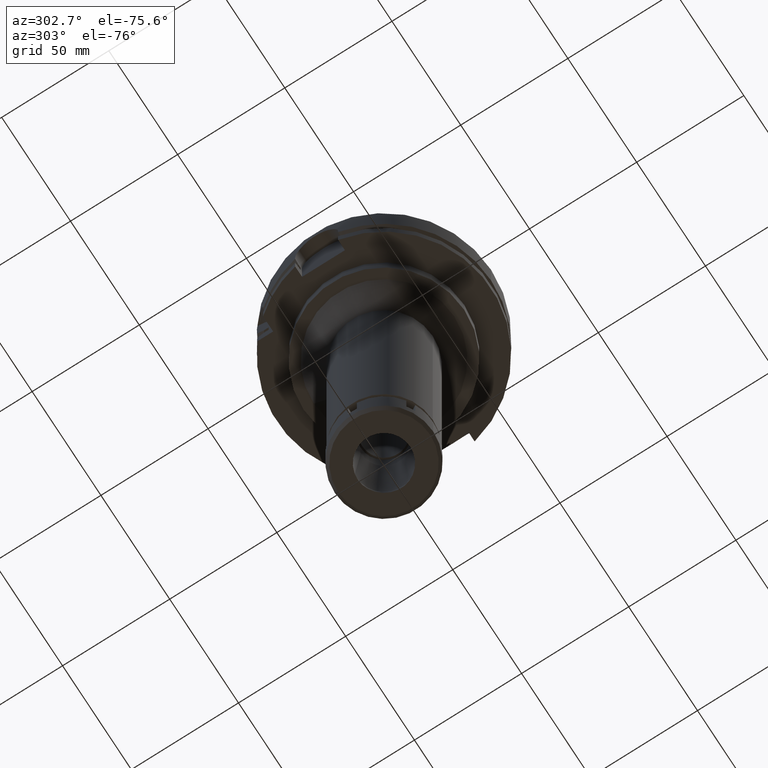
[diagram: clean part render]
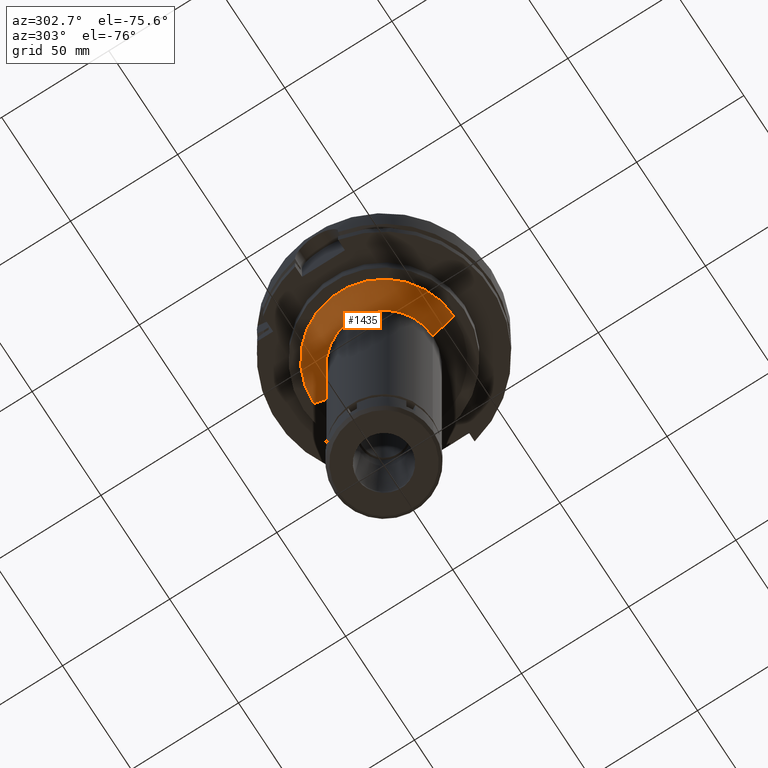
[diagram: same view with one face highlighted and labeled with its STEP entity id]
A machine part, auxiliary view. The second image highlights one B-rep face of the part: STEP entity #1435.
In plain terms, the highlighted conical surface has half-angle 45 deg.
Its self-contained STEP definition (entity closure, byte-faithful):
#16 = CARTESIAN_POINT ( 'NONE',  ( 0.0000000000000000000, 22.75000000000000000, -47.00000000000000000 ) ) ;
#66 = DIRECTION ( 'NONE',  ( 0.0000000000000000000, 1.000000000000000000, 0.0000000000000000000 ) ) ;
#85 = EDGE_CURVE ( 'NONE', #902, #2111, #6037, .T. ) ;
#304 = FACE_OUTER_BOUND ( 'NONE', #4911, .T. ) ;
#576 = VECTOR ( 'NONE', #1746, 1000.000000000000114 ) ;
#588 = VERTEX_POINT ( 'NONE', #999 ) ;
#763 = ORIENTED_EDGE ( 'NONE', *, *, #5225, .T. ) ;
#864 = CARTESIAN_POINT ( 'NONE',  ( 0.0000000000000000000, -32.75000000000000000, -37.00000000000000000 ) ) ;
#902 = VERTEX_POINT ( 'NONE', #3758 ) ;
#906 = DIRECTION ( 'NONE',  ( 0.0000000000000000000, 0.0000000000000000000, -1.000000000000000000 ) ) ;
#948 = EDGE_CURVE ( 'NONE', #588, #1825, #4363, .T. ) ;
#999 = CARTESIAN_POINT ( 'NONE',  ( 0.0000000000000000000, -32.75000000000000000, -37.00000000000000000 ) ) ;
#1055 = ORIENTED_EDGE ( 'NONE', *, *, #85, .F. ) ;
#1182 = ORIENTED_EDGE ( 'NONE', *, *, #1287, .F. ) ;
#1259 = LINE ( 'NONE', #864, #576 ) ;
#1287 = EDGE_CURVE ( 'NONE', #588, #902, #1259, .T. ) ;
#1435 = ADVANCED_FACE ( 'NONE', ( #304 ), #2962, .T. ) ;
#1746 = DIRECTION ( 'NONE',  ( 0.0000000000000000000, 0.7071067811865474617, -0.7071067811865474617 ) ) ;
#1825 = VERTEX_POINT ( 'NONE', #2517 ) ;
#2111 = VERTEX_POINT ( 'NONE', #16 ) ;
#2517 = CARTESIAN_POINT ( 'NONE',  ( 0.0000000000000000000, 32.75000000000000000, -37.00000000000000000 ) ) ;
#2651 = AXIS2_PLACEMENT_3D ( 'NONE', #4217, #4302, #66 ) ;
#2747 = VECTOR ( 'NONE', #2748, 1000.000000000000114 ) ;
#2748 = DIRECTION ( 'NONE',  ( 0.0000000000000000000, -0.7071067811865474617, -0.7071067811865474617 ) ) ;
#2962 = CONICAL_SURFACE ( 'NONE', #2651, 27.75000000000000000, 0.7853981633972997312 ) ;
#3220 = DIRECTION ( 'NONE',  ( 0.0000000000000000000, 0.0000000000000000000, -1.000000000000000000 ) ) ;
#3254 = DIRECTION ( 'NONE',  ( 0.0000000000000000000, -1.000000000000000000, 0.0000000000000000000 ) ) ;
#3284 = CARTESIAN_POINT ( 'NONE',  ( 0.0000000000000000000, 0.0000000000000000000, -47.00000000000000000 ) ) ;
#3570 = AXIS2_PLACEMENT_3D ( 'NONE', #3284, #3220, #3254 ) ;
#3758 = CARTESIAN_POINT ( 'NONE',  ( 0.0000000000000000000, -22.75000000000000000, -47.00000000000000000 ) ) ;
#4217 = CARTESIAN_POINT ( 'NONE',  ( 0.0000000000000000000, 0.0000000000000000000, -42.00000000000000000 ) ) ;
#4302 = DIRECTION ( 'NONE',  ( 0.0000000000000000000, 0.0000000000000000000, 1.000000000000000000 ) ) ;
#4363 = CIRCLE ( 'NONE', #5165, 32.75000000000000000 ) ;
#4688 = DIRECTION ( 'NONE',  ( 0.0000000000000000000, -1.000000000000000000, 0.0000000000000000000 ) ) ;
#4911 = EDGE_LOOP ( 'NONE', ( #1055, #1182, #5856, #763 ) ) ;
#5136 = LINE ( 'NONE', #5721, #2747 ) ;
#5150 = CARTESIAN_POINT ( 'NONE',  ( 0.0000000000000000000, 0.0000000000000000000, -37.00000000000000000 ) ) ;
#5165 = AXIS2_PLACEMENT_3D ( 'NONE', #5150, #906, #4688 ) ;
#5225 = EDGE_CURVE ( 'NONE', #1825, #2111, #5136, .T. ) ;
#5721 = CARTESIAN_POINT ( 'NONE',  ( 0.0000000000000000000, 32.75000000000000000, -37.00000000000000000 ) ) ;
#5856 = ORIENTED_EDGE ( 'NONE', *, *, #948, .T. ) ;
#6037 = CIRCLE ( 'NONE', #3570, 22.75000000000000000 ) ;